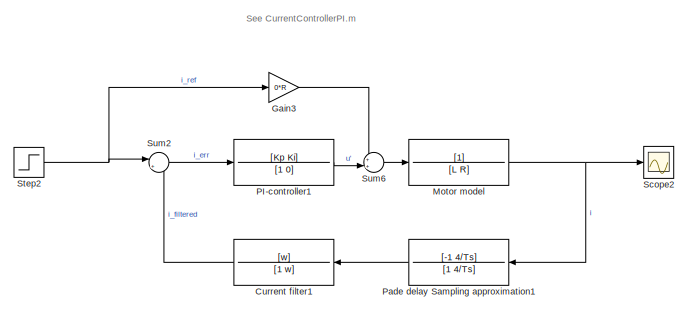
[diagram: root canvas - part 1/2, top center region]
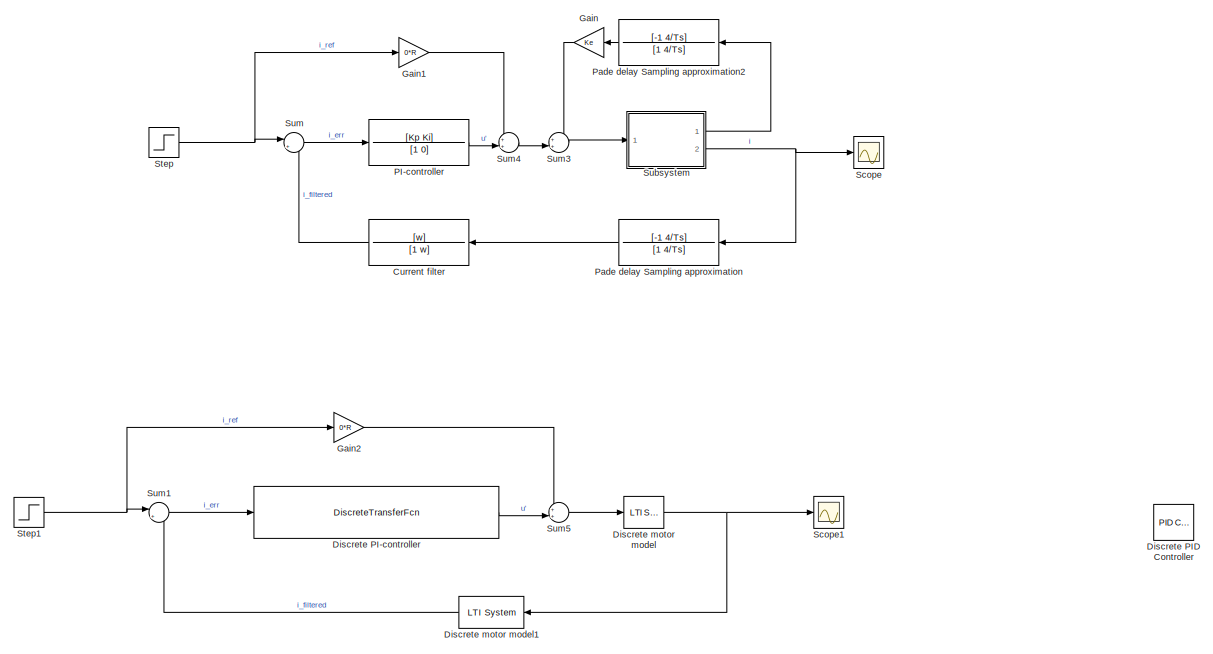
[diagram: root canvas - part 2/2, full width, bottom band]
MODEL slx_9e8fe023a57a
KIND model
CONFIG AbsTol = auto
CONFIG EnableMultiTasking = off
CONFIG FixedStep = auto
CONFIG InitFcn = Parameters_Model\nParameters_Simulation\nParameters_Controller
CONFIG MaxStep = auto
CONFIG MinStep = auto
CONFIG PreLoadFcn = modelDir = fileparts(get_param(bdroot, 'FileName'));\naddpath(fullfile(modelDir,'../Parameters'));\naddpath(fullfile(modelDir,'subsystems'));\n\nParameters_Model\nParameters_Simulation\nParameters_Controller
CONFIG RelTol = 1e-3
CONFIG SampleTimeConstraint = Unconstrained
CONFIG Solver = VariableStepAuto
CONFIG SolverName = VariableStepAuto
CONFIG StartTime = 0.0
CONFIG StopTime = 0.05
BLOCK [TransferFcn] Current filter
  Commented = on
  Denominator = [1 w]
  Numerator = [w]
BLOCK [TransferFcn] Current filter1
  Denominator = [1 w]
  Numerator = [w]
BLOCK [DiscreteTransferFcn] Discrete PI-controller
  Commented = on
  Denominator = [1 -1]
  InputPortMap = u0
  Numerator = [(Kp + Ki*Ts/2), (-Kp+Ki*Ts/2)]
  Ports = [1, 1]
BLOCK [Reference] Discrete PID Controller  REF=simulink/Continuous/PID Controller
  Commented = on
  Ports = [1, 1]
  SourceBlock = simulink/Continuous/PID Controller
  SourceProductBaseCode = SL
  SourceProductName = Simulink
  SourceType = PID 1dof
BLOCK [Reference] Discrete motor model  REF=cstblocks/LTI System
  Commented = on
  Ports = [1, 1]
  SourceBlock = cstblocks/LTI System
  SourceProductBaseCode = CT
  SourceProductName = Control System Toolbox
  SourceType = LTI Block
BLOCK [Reference] Discrete motor model1  REF=cstblocks/LTI System
  Commented = on
  Ports = [1, 1]
  SourceBlock = cstblocks/LTI System
  SourceProductBaseCode = CT
  SourceProductName = Control System Toolbox
  SourceType = LTI Block
BLOCK [Gain] Gain
  Commented = on
  Gain = Ke
  OutDataTypeStr = Inherit: Inherit via internal rule
  ParamDataTypeStr = Inherit: Inherit via internal rule
  SaturateOnIntegerOverflow = off
BLOCK [Gain] Gain1
  Commented = on
  Gain = 0*R
  OutDataTypeStr = Inherit: Inherit via internal rule
  ParamDataTypeStr = Inherit: Inherit via internal rule
  SaturateOnIntegerOverflow = off
BLOCK [Gain] Gain2
  Commented = on
  Gain = 0*R
  OutDataTypeStr = Inherit: Inherit via internal rule
  ParamDataTypeStr = Inherit: Inherit via internal rule
  SaturateOnIntegerOverflow = off
BLOCK [Gain] Gain3
  Gain = 0*R
  OutDataTypeStr = Inherit: Inherit via internal rule
  ParamDataTypeStr = Inherit: Inherit via internal rule
  SaturateOnIntegerOverflow = off
BLOCK [TransferFcn] Motor model
  Denominator = [L R]
BLOCK [TransferFcn] PI-controller
  Commented = on
  Denominator = [1 0]
  Numerator = [Kp Ki]
BLOCK [TransferFcn] PI-controller1
  Denominator = [1 0]
  Numerator = [Kp Ki]
BLOCK [TransferFcn] Pade delay Sampling approximation
  Commented = on
  Denominator = [1 4/Ts]
  Numerator = [-1 4/Ts]
BLOCK [TransferFcn] Pade delay Sampling approximation1
  Denominator = [1 4/Ts]
  Numerator = [-1 4/Ts]
BLOCK [TransferFcn] Pade delay Sampling approximation2
  Commented = on
  Denominator = [1 4/Ts]
  Numerator = [-1 4/Ts]
BLOCK [Scope] Scope
  Commented = on
  Floating = off
  NumInputPorts = 1
  Ports = [1]
  ScopeSpecificationString = Simulink.scopes.TimeScopeBlockCfg('CurrentConfiguration', extmgr.ConfigurationSet(extmgr.Configuration('Core','General UI',true),extmgr.Configuration('Core','Source UI',true),extmgr.Configuration('Sources','WiredSimulink',true),extmgr.Configuration('Visuals','Time Domain',true,'SerializedDisplays',{struct('MinYLimReal','-0.12353','MaxYLimReal','1.11178','YLabelReal','','MinYLimMag','0.00000','MaxY...<+1447ch>
BLOCK [Scope] Scope1
  Commented = on
  Floating = off
  NumInputPorts = 1
  Ports = [1]
  ScopeSpecificationString = Simulink.scopes.TimeScopeBlockCfg('CurrentConfiguration', extmgr.ConfigurationSet(extmgr.Configuration('Core','General UI',true),extmgr.Configuration('Core','Source UI',true),extmgr.Configuration('Sources','WiredSimulink',true,'DataLoggingVariableName','ScopeData1'),extmgr.Configuration('Visuals','Time Domain',true,'SerializedDisplays',{struct('MinYLimReal','-0.17838','MaxYLimReal','1.60541','YLab...<+1776ch>
BLOCK [Scope] Scope2
  Floating = off
  NumInputPorts = 1
  Ports = [1]
  ScopeSpecificationString = Simulink.scopes.TimeScopeBlockCfg('CurrentConfiguration', extmgr.ConfigurationSet(extmgr.Configuration('Core','General UI',true),extmgr.Configuration('Core','Source UI',true),extmgr.Configuration('Sources','WiredSimulink',true,'DataLoggingVariableName','ScopeData2'),extmgr.Configuration('Visuals','Time Domain',true,'SerializedDisplays',{struct('MinYLimReal','-0.12528','MaxYLimReal','1.12754','YLab...<+1461ch>
BLOCK [Step] Step
  Commented = on
  SampleTime = 0
  Time = 0.01
BLOCK [Step] Step1
  Commented = on
  SampleTime = 0
  Time = 0.01
BLOCK [Step] Step2
  SampleTime = 0
  Time = 0.01
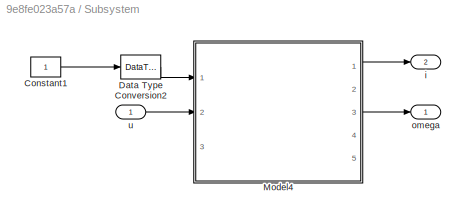
BLOCK [SubSystem] Subsystem
  Commented = on
  Ports = [1, 2]
  RequestExecContextInheritance = off
BLOCK [Constant] Subsystem/Constant1
BLOCK [DataTypeConversion] Subsystem/Data Type Conversion2
  RndMeth = Round
  SaturateOnIntegerOverflow = off
BLOCK [ModelReference] Subsystem/Model4
  ModelNameDialog = DC_Motor_BrakeMode
  ModelReferenceVersion = 1.46
  Ports = [3, 5]
BLOCK [Outport] Subsystem/i
  IconDisplay = Port number
  Port = 2
  VectorParamsAs1DForOutWhenUnconnected = off
BLOCK [Outport] Subsystem/omega
  IconDisplay = Port number
  VectorParamsAs1DForOutWhenUnconnected = off
BLOCK [Inport] Subsystem/u
  IconDisplay = Port number
BLOCK [Sum] Sum
  Commented = on
  IconShape = round
  InputSameDT = off
  Inputs = |+-
  OutDataTypeStr = Inherit: Inherit via internal rule
  Ports = [2, 1]
  SaturateOnIntegerOverflow = off
BLOCK [Sum] Sum1
  Commented = on
  IconShape = round
  InputSameDT = off
  Inputs = |+-
  OutDataTypeStr = Inherit: Inherit via internal rule
  Ports = [2, 1]
  SaturateOnIntegerOverflow = off
BLOCK [Sum] Sum2
  IconShape = round
  InputSameDT = off
  Inputs = |+-
  OutDataTypeStr = Inherit: Inherit via internal rule
  Ports = [2, 1]
  SaturateOnIntegerOverflow = off
BLOCK [Sum] Sum3
  Commented = on
  IconShape = round
  InputSameDT = off
  Inputs = ++|
  OutDataTypeStr = Inherit: Inherit via internal rule
  Ports = [2, 1]
  SaturateOnIntegerOverflow = off
BLOCK [Sum] Sum4
  Commented = on
  IconShape = round
  InputSameDT = off
  Inputs = ++|
  OutDataTypeStr = Inherit: Inherit via internal rule
  Ports = [2, 1]
  SaturateOnIntegerOverflow = off
BLOCK [Sum] Sum5
  Commented = on
  IconShape = round
  InputSameDT = off
  Inputs = ++|
  OutDataTypeStr = Inherit: Inherit via internal rule
  Ports = [2, 1]
  SaturateOnIntegerOverflow = off
BLOCK [Sum] Sum6
  IconShape = round
  InputSameDT = off
  Inputs = ++|
  OutDataTypeStr = Inherit: Inherit via internal rule
  Ports = [2, 1]
  SaturateOnIntegerOverflow = off
ANNOTATION (root): See CurrentControllerPI.m
LINE Current filter1:1 -> Sum2:2
LINE Current filter:1 -> Sum:2
LINE Discrete PI-controller:1 -> Sum5:2
LINE Discrete motor model1:1 -> Sum1:2
NET Discrete motor model:1 -> Discrete motor model1:1, Scope1:1
LINE Gain1:1 -> Sum4:1
LINE Gain2:1 -> Sum5:1
LINE Gain3:1 -> Sum6:1
LINE Gain:1 -> Sum3:1
NET Motor model:1 -> Pade delay Sampling approximation1:1, Scope2:1
LINE PI-controller1:1 -> Sum6:2
LINE PI-controller:1 -> Sum4:2
LINE Pade delay Sampling approximation1:1 -> Current filter1:1
LINE Pade delay Sampling approximation2:1 -> Gain:1
LINE Pade delay Sampling approximation:1 -> Current filter:1
NET Step1:1 -> Gain2:1, Sum1:1
NET Step2:1 -> Gain3:1, Sum2:1
NET Step:1 -> Gain1:1, Sum:1
LINE Subsystem/Constant1:1 -> Subsystem/Data Type Conversion2:1
LINE Subsystem/Data Type Conversion2:1 -> Subsystem/Model4:1
LINE Subsystem/Model4:1 -> Subsystem/i:1
LINE Subsystem/Model4:3 -> Subsystem/omega:1
LINE Subsystem/u:1 -> Subsystem/Model4:2
LINE Subsystem:1 -> Pade delay Sampling approximation2:1
NET Subsystem:2 -> Pade delay Sampling approximation:1, Scope:1
LINE Sum1:1 -> Discrete PI-controller:1
LINE Sum2:1 -> PI-controller1:1
LINE Sum3:1 -> Subsystem:1
LINE Sum4:1 -> Sum3:2
LINE Sum5:1 -> Discrete motor model:1
LINE Sum6:1 -> Motor model:1
LINE Sum:1 -> PI-controller:1
note: NET lines group one-source signal fan-out (src -> all destinations, sorted); 1:1 wires keep LINE
